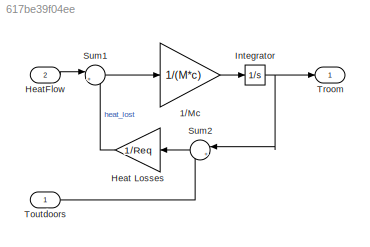
MODEL slx_617be39f04ee
KIND model
CONFIG AbsTol = auto
CONFIG EnableMultiTasking = on
CONFIG FixedStep = auto
CONFIG MaxStep = auto
CONFIG MinStep = auto
CONFIG PreLoadFcn = load house_heat_data.mat;
CONFIG RelTol = 1e-3
CONFIG SampleTimeConstraint = Unconstrained
CONFIG Solver = ode45
CONFIG SolverName = ode45
CONFIG StartTime = 0.0
CONFIG StopTime = 10.0
BLOCK [Gain] 1//Mc
  Gain = 1/(M*c)
BLOCK [Gain] Heat Losses
  Gain = 1/Req
BLOCK [Inport] HeatFlow
  IconDisplay = Port number
  Port = 2
BLOCK [Integrator] Integrator
  InitialCondition = TinIC
  Ports = [1, 1]
BLOCK [Sum] Sum1
  IconShape = round
  Inputs = |+-
  Ports = [2, 1]
BLOCK [Sum] Sum2
  IconShape = round
  Inputs = |+-
  Ports = [2, 1]
BLOCK [Inport] Toutdoors
  IconDisplay = Port number
BLOCK [Outport] Troom
  IconDisplay = Port number
  InitialOutput = 0
LINE 1//Mc:1 -> Integrator:1
LINE Heat Losses:1 -> Sum1:2
LINE HeatFlow:1 -> Sum1:1
NET Integrator:1 -> Sum2:1, Troom:1
LINE Sum1:1 -> 1//Mc:1
LINE Sum2:1 -> Heat Losses:1
LINE Toutdoors:1 -> Sum2:2
note: NET lines group one-source signal fan-out (src -> all destinations, sorted); 1:1 wires keep LINE
